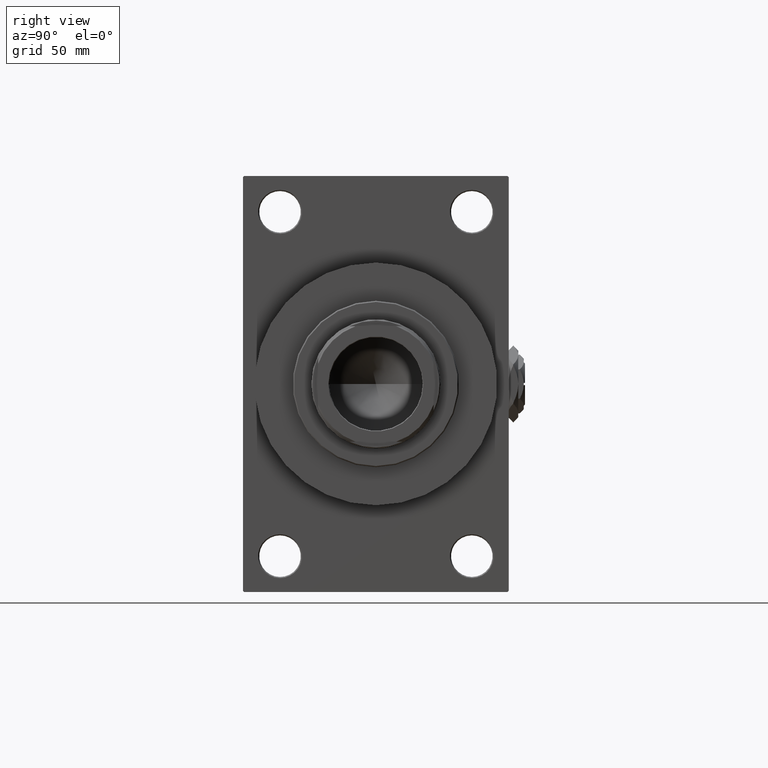
[diagram: clean part render]
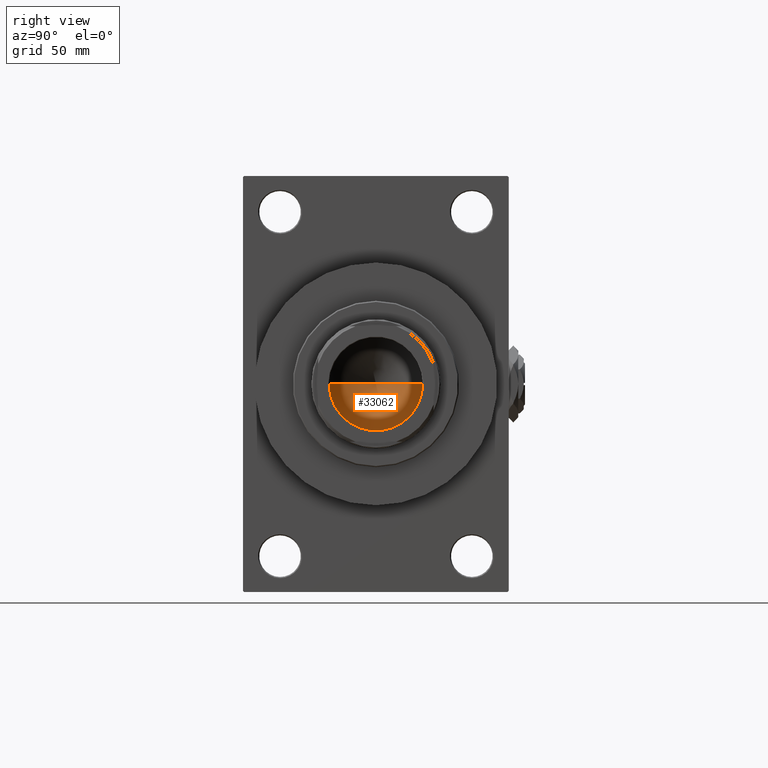
[diagram: same view with one face highlighted and labeled with its STEP entity id]
A machine part, right view. The second image highlights one B-rep face of the part: STEP entity #33062.
In plain terms, the highlighted conical surface has half-angle 59 deg.
Its self-contained STEP definition (entity closure, byte-faithful):
#18 = DIRECTION ( 'NONE',  ( 0.8571673007021120005, 0.000000000000000000, 0.5150380749100547106 ) ) ;
#331 = DIRECTION ( 'NONE',  ( -0.000000000000000000, -0.000000000000000000, 1.000000000000000000 ) ) ;
#1439 = CIRCLE ( 'NONE', #46965, 20.24999999999998934 ) ;
#3342 = DIRECTION ( 'NONE',  ( -0.8571673007021120005, 1.049727191138618326E-16, 0.5150380749100547106 ) ) ;
#4367 = ORIENTED_EDGE ( 'NONE', *, *, #17478, .F. ) ;
#4562 = ORIENTED_EDGE ( 'NONE', *, *, #45858, .T. ) ;
#4858 = VERTEX_POINT ( 'NONE', #44001 ) ;
#7674 = CARTESIAN_POINT ( 'NONE',  ( -1.844323935812429270E-14, 0.000000000000000000, 92.83257246469190704 ) ) ;
#10358 = LINE ( 'NONE', #32887, #35210 ) ;
#10931 = FACE_OUTER_BOUND ( 'NONE', #26580, .T. ) ;
#17478 = EDGE_CURVE ( 'NONE', #48238, #4858, #10358, .T. ) ;
#18554 = LINE ( 'NONE', #22309, #44664 ) ;
#18700 = CARTESIAN_POINT ( 'NONE',  ( 0.000000000000000000, 0.000000000000000000, 105.0000000000000142 ) ) ;
#22211 = DIRECTION ( 'NONE',  ( 1.000000000000000000, 0.000000000000000000, 0.000000000000000000 ) ) ;
#22309 = CARTESIAN_POINT ( 'NONE',  ( 20.24999999999998934, 0.000000000000000000, 105.0000000000000142 ) ) ;
#22373 = DIRECTION ( 'NONE',  ( 1.000000000000000000, 0.000000000000000000, 0.000000000000000000 ) ) ;
#26580 = EDGE_LOOP ( 'NONE', ( #4367, #48997, #4562 ) ) ;
#27206 = AXIS2_PLACEMENT_3D ( 'NONE', #18700, #45659, #22211 ) ;
#30708 = CARTESIAN_POINT ( 'NONE',  ( 20.24999999999998934, 0.000000000000000000, 105.0000000000000142 ) ) ;
#31513 = EDGE_CURVE ( 'NONE', #48238, #43384, #18554, .T. ) ;
#32887 = CARTESIAN_POINT ( 'NONE',  ( -20.24999999999998934, 2.479909768273389117E-15, 105.0000000000000142 ) ) ;
#33062 = ADVANCED_FACE ( 'NONE', ( #10931 ), #34417, .F. ) ;
#34417 = CONICAL_SURFACE ( 'NONE', #27206, 20.24999999999998934, 1.029744258676653867 ) ;
#35210 = VECTOR ( 'NONE', #3342, 1000.000000000000000 ) ;
#37361 = CARTESIAN_POINT ( 'NONE',  ( 0.000000000000000000, 0.000000000000000000, 105.0000000000000142 ) ) ;
#43384 = VERTEX_POINT ( 'NONE', #30708 ) ;
#44001 = CARTESIAN_POINT ( 'NONE',  ( -20.24999999999998934, 2.479909768273389117E-15, 105.0000000000000142 ) ) ;
#44664 = VECTOR ( 'NONE', #18, 1000.000000000000000 ) ;
#45659 = DIRECTION ( 'NONE',  ( -0.000000000000000000, -0.000000000000000000, 1.000000000000000000 ) ) ;
#45858 = EDGE_CURVE ( 'NONE', #43384, #4858, #1439, .T. ) ;
#46965 = AXIS2_PLACEMENT_3D ( 'NONE', #37361, #331, #22373 ) ;
#48238 = VERTEX_POINT ( 'NONE', #7674 ) ;
#48997 = ORIENTED_EDGE ( 'NONE', *, *, #31513, .T. ) ;